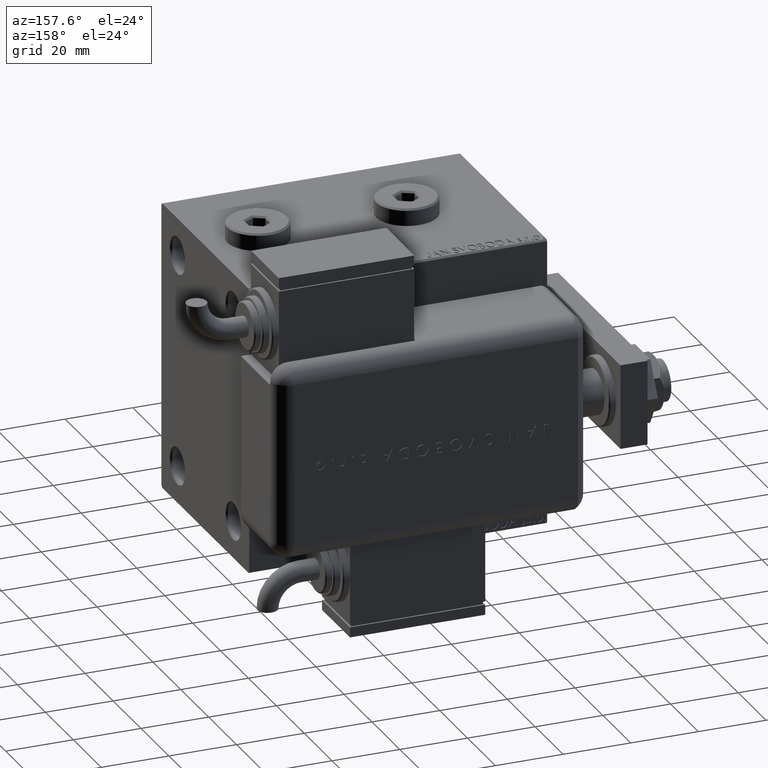
[diagram: clean part render]
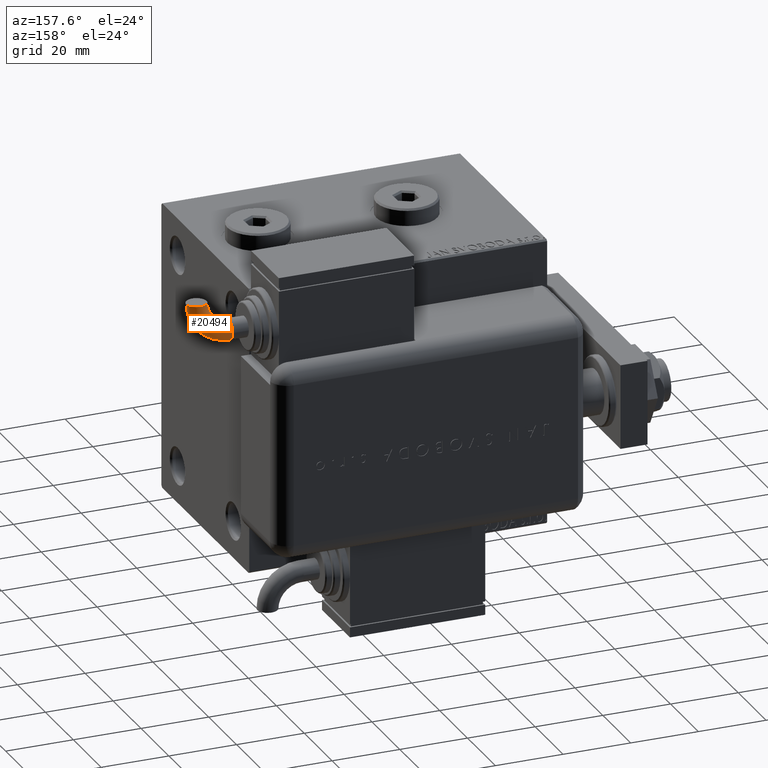
[diagram: same view with one face highlighted and labeled with its STEP entity id]
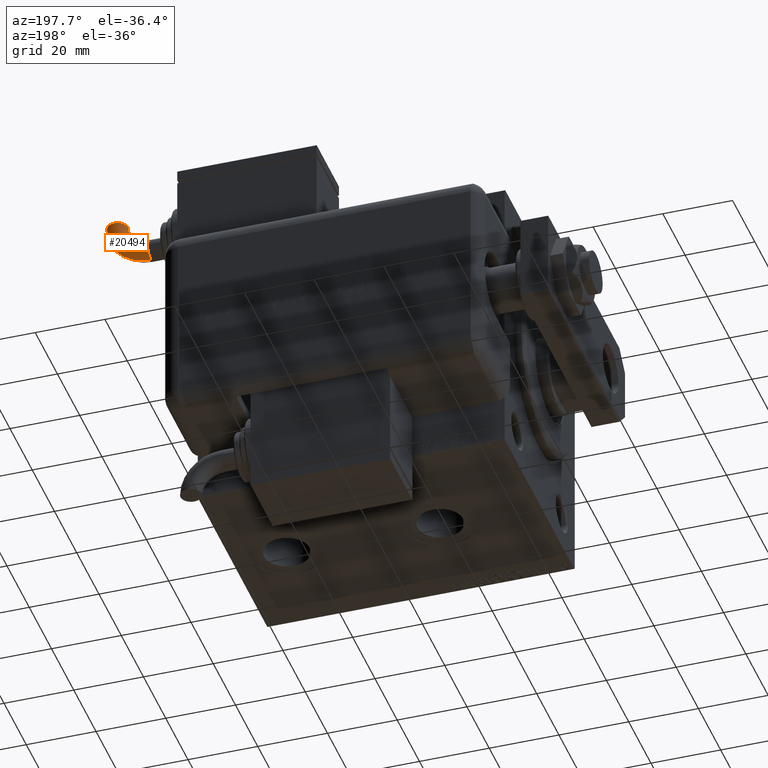
[diagram: same view with one face highlighted and labeled with its STEP entity id]
A machine part, auxiliary view. The second image highlights one B-rep face of the part: STEP entity #20494.
A second angle (auxiliary view) of the same face is appended — the face is thin or edge-on in the first view.
In plain terms, the highlighted toroidal blend (fillet) surface has major radius 9.5072 mm and minor (blend) radius 3 mm.
Its self-contained STEP definition (entity closure, byte-faithful):
#421 = DIRECTION ( 'NONE',  ( -1.156482317317872908E-15, 1.000000000000000000, 0.000000000000000000 ) ) ;
#1335 = ORIENTED_EDGE ( 'NONE', *, *, #55764, .T. ) ;
#1608 = ORIENTED_EDGE ( 'NONE', *, *, #55088, .F. ) ;
#2157 = AXIS2_PLACEMENT_3D ( 'NONE', #29242, #24593, #421 ) ;
#3757 = CIRCLE ( 'NONE', #59193, 12.50721151927396058 ) ;
#5432 = AXIS2_PLACEMENT_3D ( 'NONE', #32802, #12948, #22277 ) ;
#7751 = EDGE_CURVE ( 'NONE', #35640, #30143, #58940, .T. ) ;
#10033 = ORIENTED_EDGE ( 'NONE', *, *, #18503, .F. ) ;
#11246 = ORIENTED_EDGE ( 'NONE', *, *, #7751, .T. ) ;
#11623 = DIRECTION ( 'NONE',  ( 1.000000000000000000, 0.000000000000000000, 0.000000000000000000 ) ) ;
#12948 = DIRECTION ( 'NONE',  ( -7.402363701065945741E-06, 0.9999999999726024713, 0.000000000000000000 ) ) ;
#13489 = VERTEX_POINT ( 'NONE', #13512 ) ;
#13512 = CARTESIAN_POINT ( 'NONE',  ( -30.75201677704342629, 3.000000000000017319, 0.000000000000000000 ) ) ;
#17336 = VERTEX_POINT ( 'NONE', #21819 ) ;
#17780 = DIRECTION ( 'NONE',  ( 1.000000000000000000, 1.025520576932673761E-15, 0.000000000000000000 ) ) ;
#18503 = EDGE_CURVE ( 'NONE', #13489, #30143, #3757, .T. ) ;
#20494 = ADVANCED_FACE ( 'NONE', ( #53268 ), #39460, .T. ) ;
#20683 = VERTEX_POINT ( 'NONE', #24064 ) ;
#21819 = CARTESIAN_POINT ( 'NONE',  ( -30.75201677704341918, -2.999999999999976463, -3.673940397442056910E-16 ) ) ;
#21945 = AXIS2_PLACEMENT_3D ( 'NONE', #22451, #17780, #36707 ) ;
#22035 = AXIS2_PLACEMENT_3D ( 'NONE', #43584, #39545, #11623 ) ;
#22277 = DIRECTION ( 'NONE',  ( -0.9999999999726024713, -7.402363701169985951E-06, 0.000000000000000000 ) ) ;
#22451 = CARTESIAN_POINT ( 'NONE',  ( -30.75201677704342274, 2.081668171172168513E-14, 0.000000000000000000 ) ) ;
#24064 = CARTESIAN_POINT ( 'NONE',  ( -30.75201677704342274, 2.118407575146589373E-14, -2.999999999999997335 ) ) ;
#24593 = DIRECTION ( 'NONE',  ( 1.000000000000000000, 1.025520576932673761E-15, 0.000000000000000000 ) ) ;
#25034 = DIRECTION ( 'NONE',  ( 1.000000000000000000, 0.000000000000000000, 0.000000000000000000 ) ) ;
#29242 = CARTESIAN_POINT ( 'NONE',  ( -30.75201677704342274, 2.081668171172168513E-14, 0.000000000000000000 ) ) ;
#30143 = VERTEX_POINT ( 'NONE', #44910 ) ;
#30892 = CIRCLE ( 'NONE', #2157, 2.999999999999996003 ) ;
#31300 = CARTESIAN_POINT ( 'NONE',  ( -37.25922829613910636, -9.507259688020280208, -3.673940397551225891E-16 ) ) ;
#32802 = CARTESIAN_POINT ( 'NONE',  ( -40.25922829605691078, -9.507281895111381331, 0.000000000000000000 ) ) ;
#35395 = EDGE_CURVE ( 'NONE', #20683, #13489, #58605, .T. ) ;
#35524 = AXIS2_PLACEMENT_3D ( 'NONE', #58542, #44264, #25034 ) ;
#35640 = VERTEX_POINT ( 'NONE', #31300 ) ;
#36707 = DIRECTION ( 'NONE',  ( -1.156482317317872908E-15, 1.000000000000000000, 0.000000000000000000 ) ) ;
#39460 = TOROIDAL_SURFACE ( 'NONE', #35524, 9.507211519273964129, 2.999999999999996891 ) ;
#39545 = DIRECTION ( 'NONE',  ( 0.000000000000000000, 0.000000000000000000, 1.000000000000000000 ) ) ;
#42138 = DIRECTION ( 'NONE',  ( 1.000000000000000000, 0.000000000000000000, 0.000000000000000000 ) ) ;
#42737 = DIRECTION ( 'NONE',  ( 0.000000000000000000, 0.000000000000000000, 1.000000000000000000 ) ) ;
#43584 = CARTESIAN_POINT ( 'NONE',  ( -30.75201677704342274, -9.507211519273942812, -3.673940397442055924E-16 ) ) ;
#44264 = DIRECTION ( 'NONE',  ( 0.000000000000000000, 0.000000000000000000, 1.000000000000000000 ) ) ;
#44910 = CARTESIAN_POINT ( 'NONE',  ( -43.25922829597471519, -9.507304102202486007, 0.000000000000000000 ) ) ;
#49816 = EDGE_LOOP ( 'NONE', ( #10033, #52263, #1608, #1335, #11246 ) ) ;
#52263 = ORIENTED_EDGE ( 'NONE', *, *, #35395, .F. ) ;
#53268 = FACE_OUTER_BOUND ( 'NONE', #49816, .T. ) ;
#55088 = EDGE_CURVE ( 'NONE', #17336, #20683, #30892, .T. ) ;
#55702 = CIRCLE ( 'NONE', #22035, 6.507211519273966793 ) ;
#55764 = EDGE_CURVE ( 'NONE', #17336, #35640, #55702, .T. ) ;
#56726 = CARTESIAN_POINT ( 'NONE',  ( -30.75201677704342274, -9.507211519273942812, 0.000000000000000000 ) ) ;
#58542 = CARTESIAN_POINT ( 'NONE',  ( -30.75201677704342274, -9.507211519273942812, 0.000000000000000000 ) ) ;
#58605 = CIRCLE ( 'NONE', #21945, 2.999999999999996003 ) ;
#58940 = CIRCLE ( 'NONE', #5432, 2.999999999999996891 ) ;
#59193 = AXIS2_PLACEMENT_3D ( 'NONE', #56726, #42737, #42138 ) ;